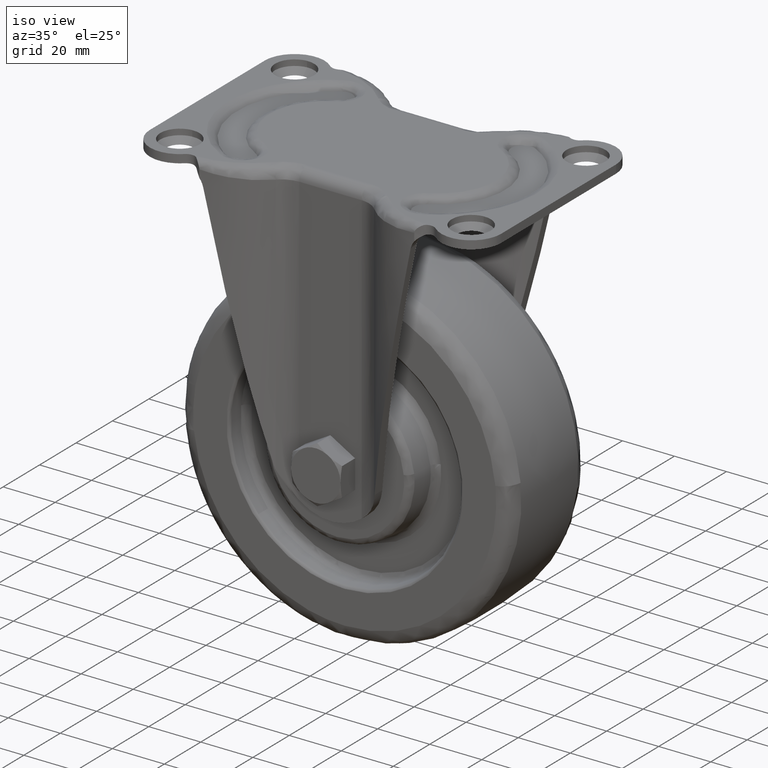
[diagram: clean part render]
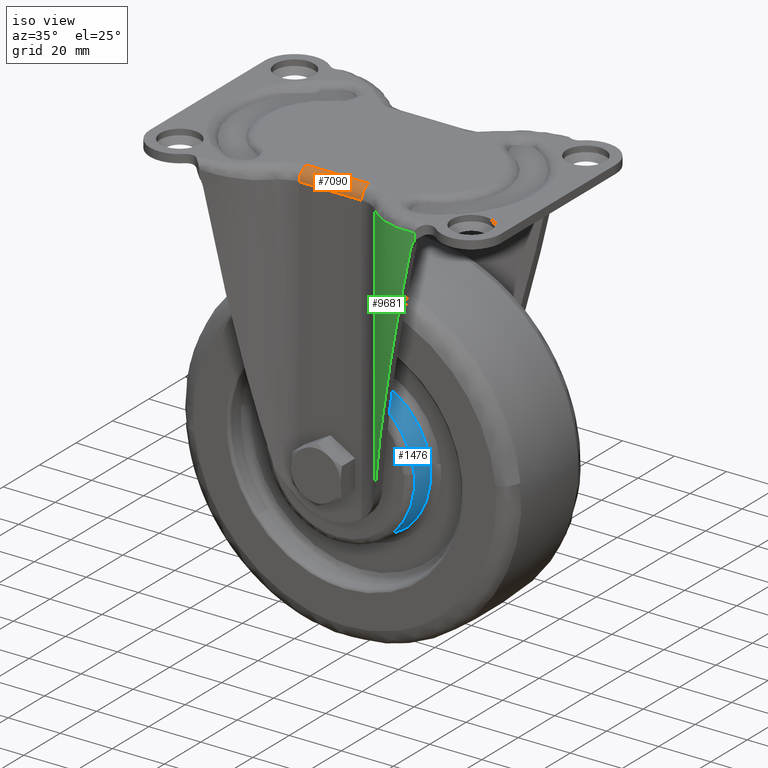
[diagram: same view with three faces highlighted in distinct colors, each labeled with its STEP entity id]
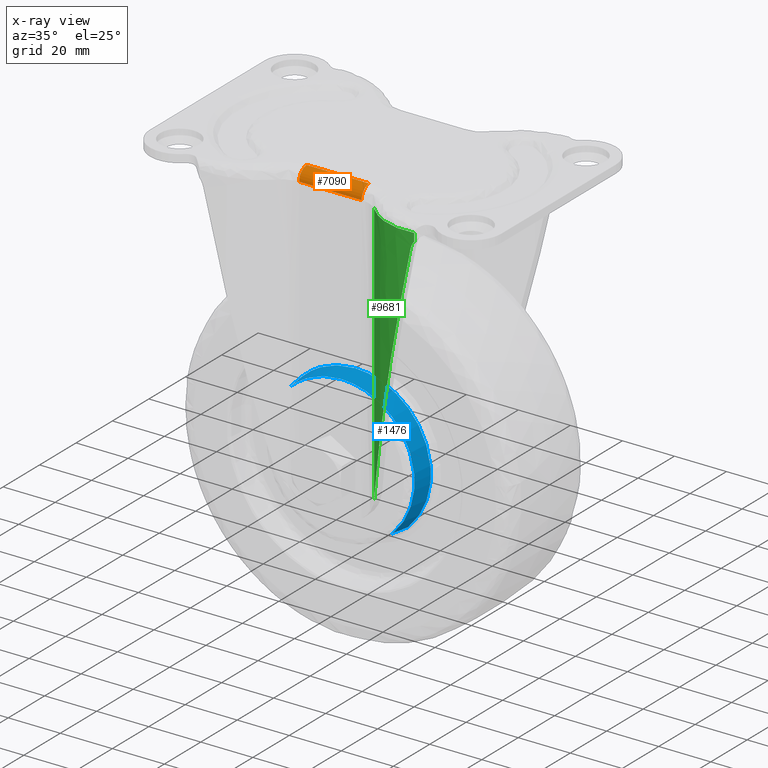
[diagram: x-ray of the same camera — body ghosted, the three highlighted faces saturated]
A machine part, iso view with three faces highlighted in distinct colors.
The next image is the same camera in x-ray (body ghosted, the three faces saturated) — at least one of them is partly hidden behind the body in this view.
Their STEP definitions:

[orange] entity #7090 — the highlighted face is a freeform B-spline surface patch.
#7000=CARTESIAN_POINT('',(11.998857618558160,-24.650000999952351,0.0));
#7001=VERTEX_POINT('',#7000);
#7015=CARTESIAN_POINT('',(11.998857443558160,-28.850000999952350,-4.200000000000000));
#7016=VERTEX_POINT('',#7015);
#7017=CARTESIAN_POINT('',(11.998857443558160,-28.850000999952339,-4.200000000000000));
#7018=CARTESIAN_POINT('',(11.998857443558157,-28.850000999952346,0.0));
#7019=CARTESIAN_POINT('',(11.998857618558160,-24.650000999952351,0.0));
#7027=(BOUNDED_CURVE()B_SPLINE_CURVE(2,(#7017,#7018,#7019),.UNSPECIFIED.,.F.,.U.)CURVE()GEOMETRIC_REPRESENTATION_ITEM()QUASI_UNIFORM_CURVE()RATIONAL_B_SPLINE_CURVE((1.0,0.707106781186548,1.0))REPRESENTATION_ITEM(''));
#7028=EDGE_CURVE('',#7016,#7001,#7027,.T.);
#7046=CARTESIAN_POINT('',(12.598800444119370,-24.466799598015552,-0.003997469356198));
#7047=CARTESIAN_POINT('',(-12.613796479296949,-24.466798547490679,-0.003997469356198));
#7048=CARTESIAN_POINT('',(12.598800527684389,-29.169452469590791,0.201324230707193));
#7049=CARTESIAN_POINT('',(-12.613796395731949,-29.169453126805212,0.201324877711733));
#7050=CARTESIAN_POINT('',(12.598800631902813,-28.839679097137772,-4.494243859754485));
#7051=CARTESIAN_POINT('',(-12.613796291513497,-28.839680264083785,-4.494243989753493));
#7059=(BOUNDED_SURFACE()B_SPLINE_SURFACE(1,2,((#7046,#7048,#7050),(#7047,#7049,#7051)),.UNSPECIFIED.,.F.,.F.,.U.)B_SPLINE_SURFACE_WITH_KNOTS((2,2),(3,3),(0.0,25.212596923416339),(0.0,7.525318715401649),.UNSPECIFIED.)GEOMETRIC_REPRESENTATION_ITEM()RATIONAL_B_SPLINE_SURFACE(((1.0,0.664513898535122,0.996233561259061),(1.0,0.664513898535122,0.996233561259061)))REPRESENTATION_ITEM('')SURFACE());
#7060=ORIENTED_EDGE('',*,*,#7028,.T.);
#7061=CARTESIAN_POINT('',(-11.998855098554341,-24.650000000047651,0.0));
#7062=VERTEX_POINT('',#7061);
#7063=CARTESIAN_POINT('',(-11.998855098554341,-24.650000000047651,0.0));
#7064=CARTESIAN_POINT('',(11.998857618558160,-24.650000999952351,0.0));
#7065=QUASI_UNIFORM_CURVE('',1,(#7063,#7064),.UNSPECIFIED.,.F.,.U.);
#7066=EDGE_CURVE('',#7062,#7001,#7065,.T.);
#7067=ORIENTED_EDGE('',*,*,#7066,.F.);
#7068=CARTESIAN_POINT('',(-11.998855098554341,-28.850000000047650,-4.200000000000000));
#7069=VERTEX_POINT('',#7068);
#7070=CARTESIAN_POINT('',(-11.998855098554341,-28.850000000047640,-4.200000000000006));
#7071=CARTESIAN_POINT('',(-11.998855273554341,-28.850000000047650,-1.040834E-014));
#7072=CARTESIAN_POINT('',(-11.998855098554341,-24.650000000047651,-3.469447E-015));
#7080=(BOUNDED_CURVE()B_SPLINE_CURVE(2,(#7070,#7071,#7072),.UNSPECIFIED.,.F.,.U.)CURVE()GEOMETRIC_REPRESENTATION_ITEM()QUASI_UNIFORM_CURVE()RATIONAL_B_SPLINE_CURVE((1.0,0.707106781186548,1.0))REPRESENTATION_ITEM(''));
#7081=EDGE_CURVE('',#7069,#7062,#7080,.T.);
#7082=ORIENTED_EDGE('',*,*,#7081,.F.);
#7083=CARTESIAN_POINT('',(11.998857443558160,-28.850000999952350,-4.200000000000000));
#7084=CARTESIAN_POINT('',(-11.998855098554341,-28.850000000047650,-4.200000000000000));
#7085=QUASI_UNIFORM_CURVE('',1,(#7083,#7084),.UNSPECIFIED.,.F.,.U.);
#7086=EDGE_CURVE('',#7016,#7069,#7085,.T.);
#7087=ORIENTED_EDGE('',*,*,#7086,.F.);
#7088=EDGE_LOOP('',(#7060,#7067,#7082,#7087));
#7089=FACE_OUTER_BOUND('',#7088,.T.);
#7090=ADVANCED_FACE('',(#7089),#7059,.T.);

[blue] entity #1476 — the highlighted face is a freeform B-spline surface patch.
#1179=CARTESIAN_POINT('',(19.790379144821468,-22.961321000142700,-120.138836127491600));
#1180=VERTEX_POINT('',#1179);
#1194=CARTESIAN_POINT('',(28.092734480021878,-22.961321000310690,-97.166257474720354));
#1195=VERTEX_POINT('',#1194);
#1196=CARTESIAN_POINT('',(19.790379144821475,-22.961321000142700,-120.138836127491590));
#1197=CARTESIAN_POINT('',(28.235293999974719,-22.961321000230495,-111.840041412074110));
#1198=CARTESIAN_POINT('',(28.235293999968789,-22.961321000295769,-100.000000000002900));
#1199=CARTESIAN_POINT('',(28.235293999968082,-22.961321000303602,-98.579542805233757));
#1200=CARTESIAN_POINT('',(28.092734480021875,-22.961321000310686,-97.166257474720354));
#1208=(BOUNDED_CURVE()B_SPLINE_CURVE(2,(#1196,#1197,#1198,#1199,#1200),.UNSPECIFIED.,.F.,.U.)B_SPLINE_CURVE_WITH_KNOTS((3,2,3),(0.123683242408972,0.250000000000000,0.267423441082829),.UNSPECIFIED.)CURVE()GEOMETRIC_REPRESENTATION_ITEM()RATIONAL_B_SPLINE_CURVE((0.853569641251500,0.852010713116341,1.0,0.979587169033774,0.962019632128939))REPRESENTATION_ITEM(''));
#1209=EDGE_CURVE('',#1180,#1195,#1208,.T.);
#1271=CARTESIAN_POINT('',(0.0,-22.961321000000002,-71.764706000000047));
#1272=VERTEX_POINT('',#1271);
#1273=CARTESIAN_POINT('',(-19.790379144821479,-22.961321000142689,-79.861163872508428));
#1274=VERTEX_POINT('',#1273);
#1275=CARTESIAN_POINT('',(0.0,-22.961321000000002,-71.764706000000047));
#1276=CARTESIAN_POINT('',(-11.551363756886898,-22.961321000057318,-71.764706000000430));
#1277=CARTESIAN_POINT('',(-19.790379144821475,-22.961321000142696,-79.861163872508428));
#1285=(BOUNDED_CURVE()B_SPLINE_CURVE(2,(#1275,#1276,#1277),.UNSPECIFIED.,.F.,.U.)B_SPLINE_CURVE_WITH_KNOTS((3,3),(0.500000000000000,0.623683242408972),.UNSPECIFIED.)CURVE()GEOMETRIC_REPRESENTATION_ITEM()RATIONAL_B_SPLINE_CURVE((1.0,0.855096068070207,0.853569641251500))REPRESENTATION_ITEM(''));
#1286=EDGE_CURVE('',#1272,#1274,#1285,.T.);
#1307=CARTESIAN_POINT('',(28.092734480021875,-22.961321000310690,-97.166257474720354));
#1308=CARTESIAN_POINT('',(25.530454304956717,-22.961321000155340,-71.764706000001681));
#1309=CARTESIAN_POINT('',(0.0,-22.961321000000002,-71.764706000000047));
#1317=(BOUNDED_CURVE()B_SPLINE_CURVE(2,(#1307,#1308,#1309),.UNSPECIFIED.,.F.,.U.)B_SPLINE_CURVE_WITH_KNOTS((3,3),(0.267423441082829,0.500000000000000),.UNSPECIFIED.)CURVE()GEOMETRIC_REPRESENTATION_ITEM()RATIONAL_B_SPLINE_CURVE((0.962019632128939,0.727519612152773,1.0))REPRESENTATION_ITEM(''));
#1318=EDGE_CURVE('',#1195,#1272,#1317,.T.);
#1343=CARTESIAN_POINT('',(20.359294447303888,-15.238679021351670,-120.717768545272700));
#1344=VERTEX_POINT('',#1343);
#1358=CARTESIAN_POINT('',(19.790379144821468,-22.961321000142700,-120.138836127491600));
#1359=CARTESIAN_POINT('',(20.359294447303888,-15.238679021351670,-120.717768545272700));
#1360=QUASI_UNIFORM_CURVE('',1,(#1358,#1359),.UNSPECIFIED.,.F.,.U.);
#1361=EDGE_CURVE('',#1180,#1344,#1360,.T.);
#1366=CARTESIAN_POINT('',(-20.359294447303881,-15.238679021351670,-79.282231454727338));
#1367=VERTEX_POINT('',#1366);
#1368=CARTESIAN_POINT('',(-19.790379144821479,-22.961321000142689,-79.861163872508428));
#1369=CARTESIAN_POINT('',(-20.359294447303881,-15.238679021351670,-79.282231454727338));
#1370=QUASI_UNIFORM_CURVE('',1,(#1368,#1369),.UNSPECIFIED.,.F.,.U.);
#1371=EDGE_CURVE('',#1274,#1367,#1370,.T.);
#1406=CARTESIAN_POINT('',(-19.776156262242619,-23.154387049808129,-79.875637182969896));
#1407=CARTESIAN_POINT('',(0.348206554787481,-23.154387049808136,-60.099480920727274));
#1408=CARTESIAN_POINT('',(20.124362817030100,-23.154387049808129,-80.223843737757377));
#1409=CARTESIAN_POINT('',(39.900519079272733,-23.154387049808136,-100.348206554787470));
#1410=CARTESIAN_POINT('',(19.776156262242619,-23.154387049808129,-120.124362817030100));
#1411=CARTESIAN_POINT('',(-20.373872902012518,-15.040786319678030,-79.267396311437594));
#1412=CARTESIAN_POINT('',(0.358730786549888,-15.040786319678029,-58.893523409425086));
#1413=CARTESIAN_POINT('',(20.732603688562399,-15.040786319678030,-79.626127097987478));
#1414=CARTESIAN_POINT('',(41.106476590574921,-15.040786319678029,-100.358730786549880));
#1415=CARTESIAN_POINT('',(20.373872902012518,-15.040786319678030,-120.732603688562410));
#1423=(BOUNDED_SURFACE()B_SPLINE_SURFACE(2,1,((#1406,#1411),(#1407,#1412),(#1408,#1413),(#1409,#1414),(#1410,#1415)),.UNSPECIFIED.,.F.,.F.,.U.)B_SPLINE_SURFACE_WITH_KNOTS((3,2,3),(2,2),(0.0,48.161066796623139,96.322133593246278),(0.0,8.158292649030672),.UNSPECIFIED.)GEOMETRIC_REPRESENTATION_ITEM()RATIONAL_B_SPLINE_SURFACE(((1.0,1.0),(0.707106781186548,0.707106781186548),(1.0,1.0),(0.707106781186548,0.707106781186548),(1.0,1.0)))REPRESENTATION_ITEM('')SURFACE());
#1424=CARTESIAN_POINT('',(28.900318125584189,-15.238679020412910,-97.084795695978983));
#1425=VERTEX_POINT('',#1424);
#1426=CARTESIAN_POINT('',(20.359294447303881,-15.238679021351665,-120.717768545272680));
#1427=CARTESIAN_POINT('',(29.046975813184734,-15.238679020861028,-112.180407844274480));
#1428=CARTESIAN_POINT('',(29.046975813217831,-15.238679020496249,-99.999999999983771));
#1429=CARTESIAN_POINT('',(29.046975813221799,-15.238679020452491,-98.538708830831723));
#1430=CARTESIAN_POINT('',(28.900318125584189,-15.238679020412921,-97.084795695978983));
#1438=(BOUNDED_CURVE()B_SPLINE_CURVE(2,(#1426,#1427,#1428,#1429,#1430),.UNSPECIFIED.,.F.,.U.)B_SPLINE_CURVE_WITH_KNOTS((3,2,3),(0.123683242408569,0.250000000000000,0.267423441083099),.UNSPECIFIED.)CURVE()GEOMETRIC_REPRESENTATION_ITEM()RATIONAL_B_SPLINE_CURVE((0.853569641251510,0.852010713115869,1.0,0.979587169033458,0.962019632128395))REPRESENTATION_ITEM(''));
#1439=EDGE_CURVE('',#1344,#1425,#1438,.T.);
#1440=ORIENTED_EDGE('',*,*,#1439,.T.);
#1441=CARTESIAN_POINT('',(0.0,-15.238679022149149,-70.953024186956199));
#1442=VERTEX_POINT('',#1441);
#1443=CARTESIAN_POINT('',(28.900318125584189,-15.238679020412921,-97.084795695978983));
#1444=CARTESIAN_POINT('',(26.264379917345732,-15.238679021281030,-70.953024186947047));
#1445=CARTESIAN_POINT('',(0.0,-15.238679022149149,-70.953024186956199));
#1453=(BOUNDED_CURVE()B_SPLINE_CURVE(2,(#1443,#1444,#1445),.UNSPECIFIED.,.F.,.U.)B_SPLINE_CURVE_WITH_KNOTS((3,3),(0.267423441083099,0.500000000000000),.UNSPECIFIED.)CURVE()GEOMETRIC_REPRESENTATION_ITEM()RATIONAL_B_SPLINE_CURVE((0.962019632128395,0.727519612153089,1.0))REPRESENTATION_ITEM(''));
#1454=EDGE_CURVE('',#1425,#1442,#1453,.T.);
#1455=ORIENTED_EDGE('',*,*,#1454,.T.);
#1456=CARTESIAN_POINT('',(0.0,-15.238679022149149,-70.953024186956199));
#1457=CARTESIAN_POINT('',(-11.883431553926478,-15.238679021828828,-70.953024186954039));
#1458=CARTESIAN_POINT('',(-20.359294447303885,-15.238679021351668,-79.282231454727338));
#1466=(BOUNDED_CURVE()B_SPLINE_CURVE(2,(#1456,#1457,#1458),.UNSPECIFIED.,.F.,.U.)B_SPLINE_CURVE_WITH_KNOTS((3,3),(0.500000000000000,0.623683242408569),.UNSPECIFIED.)CURVE()GEOMETRIC_REPRESENTATION_ITEM()RATIONAL_B_SPLINE_CURVE((1.0,0.855096068070679,0.853569641251510))REPRESENTATION_ITEM(''));
#1467=EDGE_CURVE('',#1442,#1367,#1466,.T.);
#1468=ORIENTED_EDGE('',*,*,#1467,.T.);
#1469=ORIENTED_EDGE('',*,*,#1371,.F.);
#1470=ORIENTED_EDGE('',*,*,#1286,.F.);
#1471=ORIENTED_EDGE('',*,*,#1318,.F.);
#1472=ORIENTED_EDGE('',*,*,#1209,.F.);
#1473=ORIENTED_EDGE('',*,*,#1361,.T.);
#1474=EDGE_LOOP('',(#1440,#1455,#1468,#1469,#1470,#1471,#1472,#1473));
#1475=FACE_OUTER_BOUND('',#1474,.T.);
#1476=ADVANCED_FACE('',(#1475),#1423,.T.);

[green] entity #9681 — the highlighted face is a freeform B-spline surface patch.
#6907=CARTESIAN_POINT('',(18.914967121290498,-31.823453018504100,-4.200000000000000));
#6908=VERTEX_POINT('',#6907);
#6922=CARTESIAN_POINT('',(41.310868942585152,-41.797070384291949,-2.800198280937360));
#6923=VERTEX_POINT('',#6922);
#6924=CARTESIAN_POINT('',(41.310868942585152,-41.797070384291949,-2.800198280937360));
#6925=CARTESIAN_POINT('',(41.033639728118068,-41.787823461214273,-2.823273924218021));
#6926=CARTESIAN_POINT('',(40.486317870474387,-41.769567653917420,-2.868831186179788));
#6927=CARTESIAN_POINT('',(39.677221302296729,-41.716107190036013,-2.935735082027663));
#6928=CARTESIAN_POINT('',(38.890954329966419,-41.645833427532381,-3.000455439542091));
#6929=CARTESIAN_POINT('',(38.127899429954049,-41.558498188805068,-3.062956363166304));
#6930=CARTESIAN_POINT('',(37.388309626025602,-41.456162039575091,-3.123247125893632));
#6931=CARTESIAN_POINT('',(36.672385436564682,-41.340240016947263,-3.181325386764329));
#6932=CARTESIAN_POINT('',(35.980261528976797,-41.212258711271332,-3.237191793972155));
#6933=CARTESIAN_POINT('',(35.312016463876532,-41.073659560290523,-3.290846234597308));
#6934=CARTESIAN_POINT('',(34.667676366889928,-40.925847462771543,-3.342288797837704));
#6935=CARTESIAN_POINT('',(34.047219999512421,-40.770176827613028,-3.391519528988994));
#6936=CARTESIAN_POINT('',(33.450583299659947,-40.607953977128432,-3.438538495217868));
#6937=CARTESIAN_POINT('',(32.877663875438799,-40.440435668619138,-3.483345765497734));
#6938=CARTESIAN_POINT('',(32.328325316695903,-40.268828880998527,-3.525941435509389));
#6939=CARTESIAN_POINT('',(31.802401360304572,-40.094290531594197,-3.566325561498192));
#6940=CARTESIAN_POINT('',(31.299699862938869,-39.917927420982153,-3.604498400306069));
#6941=CARTESIAN_POINT('',(30.820006698734311,-39.740796367743151,-3.640459579006751));
#6942=CARTESIAN_POINT('',(30.363089162858380,-39.563904302975303,-3.674211023625075));
#6943=CARTESIAN_POINT('',(29.928700337934380,-39.388209119865813,-3.705746733407733));
#6944=CARTESIAN_POINT('',(29.516579330093421,-39.214618404618037,-3.735088478284834));
#6945=CARTESIAN_POINT('',(28.723337865109730,-38.867682122470882,-3.790138003537435));
#6946=CARTESIAN_POINT('',(27.570467888684892,-38.316613969539937,-3.866034712230530));
#6947=CARTESIAN_POINT('',(26.093681755239150,-37.511517047515817,-3.955093731148495));
#6948=CARTESIAN_POINT('',(24.697706431178279,-36.653771572719648,-4.030439326041369));
#6949=CARTESIAN_POINT('',(23.382843744508481,-35.751252543728242,-4.092113859119208));
#6950=CARTESIAN_POINT('',(22.148314571554419,-34.811891014556920,-4.140206191579333));
#6951=CARTESIAN_POINT('',(20.994424853150729,-33.841759013733800,-4.174340188804512));
#6952=CARTESIAN_POINT('',(19.915350748332060,-32.851916920364992,-4.195878371409365));
#6953=CARTESIAN_POINT('',(19.245044056282190,-32.162795050200231,-4.198640067174623));
#6954=CARTESIAN_POINT('',(18.914967121290481,-31.823453018504079,-4.199999999999982));
#6955=B_SPLINE_CURVE_WITH_KNOTS('',3,(#6924,#6925,#6926,#6927,#6928,#6929,#6930,#6931,#6932,#6933,#6934,#6935,#6936,#6937,#6938,#6939,#6940,#6941,#6942,#6943,#6944,#6945,#6946,#6947,#6948,#6949,#6950,#6951,#6952,#6953,#6954),.UNSPECIFIED.,.F.,.U.,(4,1,1,1,1,1,1,1,1,1,1,1,1,1,1,1,1,1,1,1,1,1,1,1,1,1,1,1,4),(0.0,0.033128303067013,0.065403801002962,0.096826499924554,0.127396406853899,0.157113529811637,0.185977877923775,0.213989461544824,0.241148292400235,0.267454383751940,0.292907750591589,0.317508409867284,0.341256380751007,0.364151684955827,0.386194347114434,0.407384395233802,0.427721861245121,0.447206781673975,0.465839198463774,0.483619159996483,0.500546722370197,0.569098661609172,0.635895238242822,0.700939461102363,0.764234592252118,0.825784175191970,0.885592067022957,0.943662475246497,1.0),.UNSPECIFIED.);
#6956=EDGE_CURVE('',#6923,#6908,#6955,.T.);
#7780=CARTESIAN_POINT('',(18.914967121290498,-31.823453018504100,-104.978525347478200));
#7781=VERTEX_POINT('',#7780);
#7782=CARTESIAN_POINT('',(18.914967121290498,-31.823453018504100,-104.978525347478200));
#7783=CARTESIAN_POINT('',(18.914967121290498,-31.823453018504100,-4.200000000000000));
#7784=QUASI_UNIFORM_CURVE('',1,(#7782,#7783),.UNSPECIFIED.,.F.,.U.);
#7785=EDGE_CURVE('',#7781,#6908,#7784,.T.);
#8190=CARTESIAN_POINT('',(41.310868942585152,-41.797070384291949,-5.722018302380841));
#8191=VERTEX_POINT('',#8190);
#8192=CARTESIAN_POINT('',(41.310868942585152,-41.797070384291949,-5.722018302380841));
#8193=CARTESIAN_POINT('',(41.310868942585152,-41.797070384291949,-2.800198280937360));
#8194=QUASI_UNIFORM_CURVE('',1,(#8192,#8193),.UNSPECIFIED.,.F.,.U.);
#8195=EDGE_CURVE('',#8191,#6923,#8194,.T.);
#9619=CARTESIAN_POINT('',(42.526031111275792,-41.805409310525846,-107.532983524141760));
#9620=CARTESIAN_POINT('',(42.526031111275792,-41.805409310525846,-0.181878649857254));
#9621=CARTESIAN_POINT('',(27.803440186352056,-41.983947245419436,-107.532983524141730));
#9622=CARTESIAN_POINT('',(27.803440186352056,-41.983947245419436,-0.181878649857254));
#9623=CARTESIAN_POINT('',(18.089833783057742,-30.919029262048667,-107.532983524141730));
#9624=CARTESIAN_POINT('',(18.089833783057742,-30.919029262048667,-0.181878649857254));
#9632=(BOUNDED_SURFACE()B_SPLINE_SURFACE(1,2,((#9619,#9621,#9623),(#9620,#9622,#9624)),.UNSPECIFIED.,.F.,.F.,.U.)B_SPLINE_SURFACE_WITH_KNOTS((2,2),(3,3),(0.0,107.351104874284500),(0.0,28.034635224391302),.UNSPECIFIED.)GEOMETRIC_REPRESENTATION_ITEM()RATIONAL_B_SPLINE_SURFACE(((0.998892785059262,0.903928490373857,0.991166002815962),(0.998892785059262,0.903928490373857,0.991166002815962)))REPRESENTATION_ITEM('')SURFACE());
#9633=ORIENTED_EDGE('',*,*,#8195,.T.);
#9634=ORIENTED_EDGE('',*,*,#6956,.T.);
#9635=ORIENTED_EDGE('',*,*,#7785,.F.);
#9636=CARTESIAN_POINT('',(19.360835006099201,-32.284431320251997,-103.285781091033600));
#9637=VERTEX_POINT('',#9636);
#9638=CARTESIAN_POINT('',(19.360835006099212,-32.284431320251983,-103.285781091033600));
#9639=CARTESIAN_POINT('',(19.298646458562729,-32.221411354430337,-103.572826187231900));
#9640=CARTESIAN_POINT('',(19.230194955913149,-32.151528122597817,-103.857943125725100));
#9641=CARTESIAN_POINT('',(19.118225505145919,-32.035959568731919,-104.282675204773500));
#9642=CARTESIAN_POINT('',(19.079346812804559,-31.995636671009940,-104.423756661533400));
#9643=CARTESIAN_POINT('',(18.999097808166809,-31.911935231758370,-104.702968049093600));
#9644=CARTESIAN_POINT('',(18.957663220133579,-31.868490577933159,-104.841349149244390));
#9645=CARTESIAN_POINT('',(18.914967121290520,-31.823453018504122,-104.978525347478200));
#9646=B_SPLINE_CURVE_WITH_KNOTS('',3,(#9638,#9639,#9640,#9641,#9642,#9643,#9644,#9645),.UNSPECIFIED.,.F.,.U.,(4,2,2,4),(0.0,0.499999999999990,0.749999999999995,1.0),.UNSPECIFIED.);
#9647=EDGE_CURVE('',#9637,#7781,#9646,.T.);
#9648=ORIENTED_EDGE('',*,*,#9647,.F.);
#9649=CARTESIAN_POINT('',(39.852367748816953,-41.726030688477103,-8.702546389594382));
#9650=VERTEX_POINT('',#9649);
#9651=CARTESIAN_POINT('',(19.360835006099180,-32.284431320251983,-103.285781091033600));
#9652=CARTESIAN_POINT('',(27.828192855634104,-40.864991944605698,-64.202804486062647));
#9653=CARTESIAN_POINT('',(39.852367748816697,-41.726030688477103,-8.702546389595559));
#9661=(BOUNDED_CURVE()B_SPLINE_CURVE(2,(#9651,#9652,#9653),.UNSPECIFIED.,.F.,.U.)CURVE()GEOMETRIC_REPRESENTATION_ITEM()QUASI_UNIFORM_CURVE()RATIONAL_B_SPLINE_CURVE((1.0,0.935799667337347,1.0))REPRESENTATION_ITEM(''));
#9662=EDGE_CURVE('',#9637,#9650,#9661,.T.);
#9663=ORIENTED_EDGE('',*,*,#9662,.T.);
#9664=CARTESIAN_POINT('',(39.852367748816953,-41.726030688477103,-8.702546389594382));
#9665=CARTESIAN_POINT('',(39.911925739688343,-41.730295567815162,-8.427643906677522));
#9666=CARTESIAN_POINT('',(39.987545501568562,-41.735553444598722,-8.159216957216346));
#9667=CARTESIAN_POINT('',(40.169710314448672,-41.747301084645322,-7.634815189445254));
#9668=CARTESIAN_POINT('',(40.276258790798792,-41.753792280065319,-7.378841780546341));
#9669=CARTESIAN_POINT('',(40.459331800371253,-41.763759867076949,-7.004227246012719));
#9670=CARTESIAN_POINT('',(40.524240669353290,-41.767119394696863,-6.880917106455244));
#9671=CARTESIAN_POINT('',(40.661955160569903,-41.773775772998022,-6.637467682561353));
#9672=CARTESIAN_POINT('',(40.734947501250460,-41.777079814773508,-6.517059413541175));
#9673=CARTESIAN_POINT('',(40.964107522794222,-41.786588597202403,-6.163658841558269));
#9674=CARTESIAN_POINT('',(41.130628052676663,-41.792409966955738,-5.937923703463239));
#9675=CARTESIAN_POINT('',(41.310868942585152,-41.797070384291949,-5.722018302380841));
#9676=B_SPLINE_CURVE_WITH_KNOTS('',3,(#9664,#9665,#9666,#9667,#9668,#9669,#9670,#9671,#9672,#9673,#9674,#9675),.UNSPECIFIED.,.F.,.U.,(4,2,2,2,2,4),(0.0,0.249999999999999,0.499999999999998,0.624999999999999,0.750000000000001,1.0),.UNSPECIFIED.);
#9677=EDGE_CURVE('',#9650,#8191,#9676,.T.);
#9678=ORIENTED_EDGE('',*,*,#9677,.T.);
#9679=EDGE_LOOP('',(#9633,#9634,#9635,#9648,#9663,#9678));
#9680=FACE_OUTER_BOUND('',#9679,.T.);
#9681=ADVANCED_FACE('',(#9680),#9632,.T.);